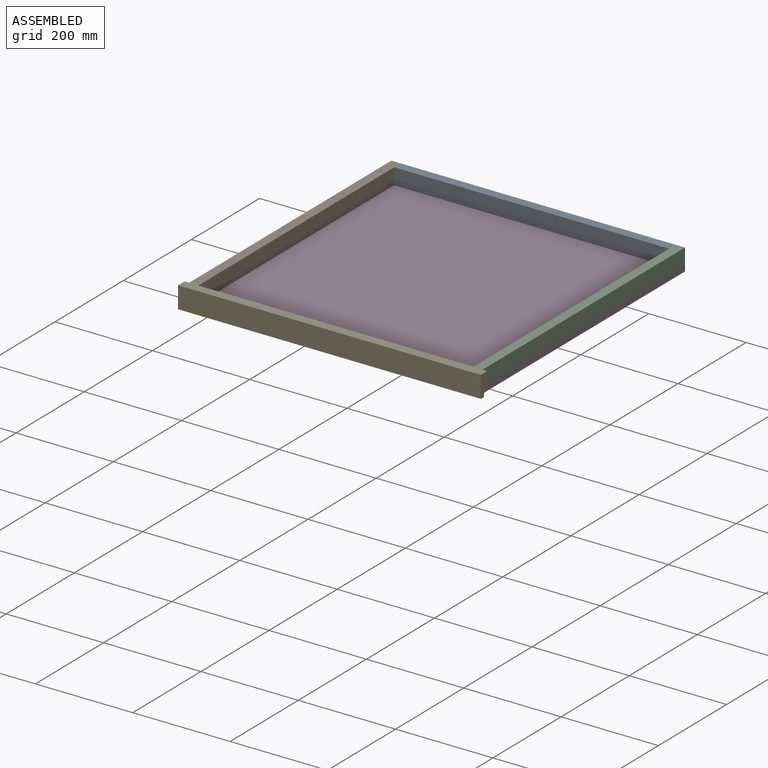
[diagram: assembled view]
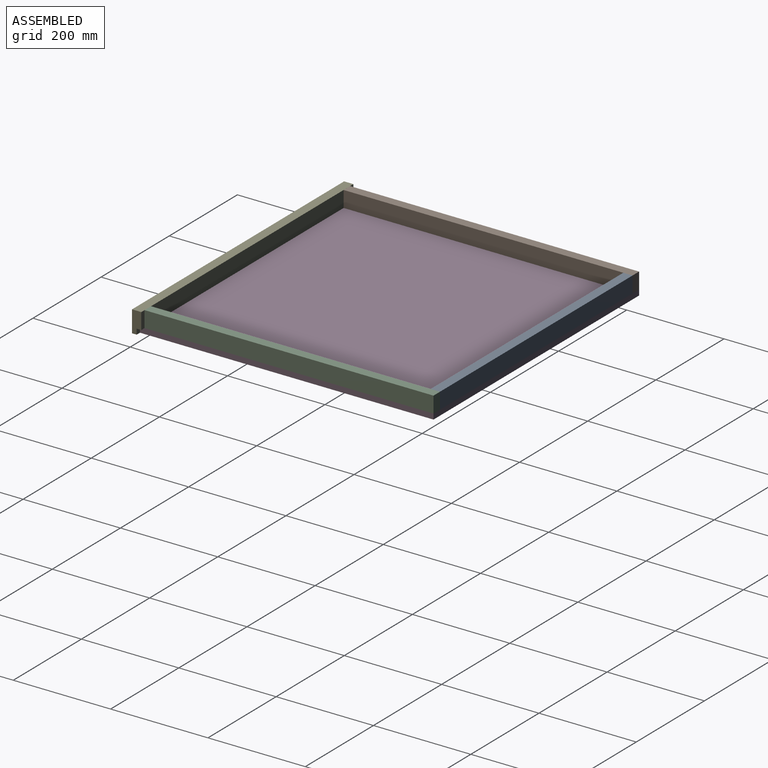
[diagram: assembled view, second angle]
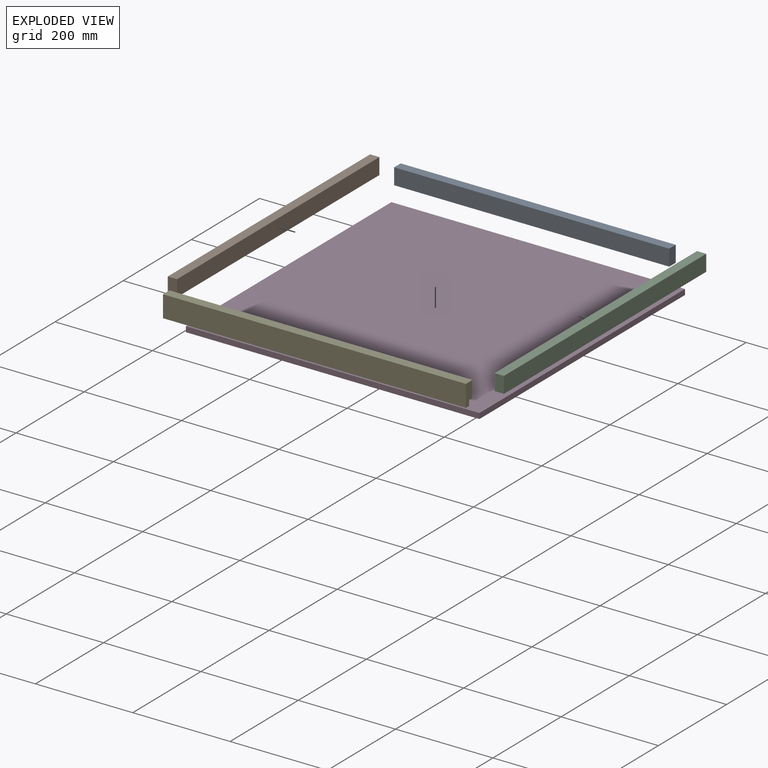
[diagram: exploded view]
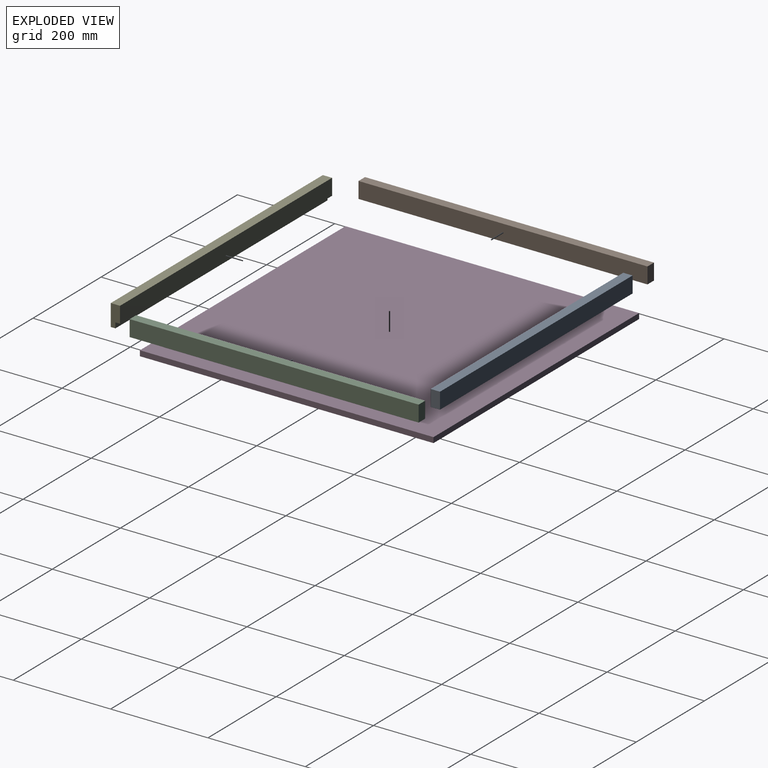
[diagram: exploded view, second angle]
ASSEMBLY  parts=5 mates=5
PART A: 6 faces, bbox 19.1x565.2x33.3 mm
  f0: plane 565.15x33.34mm, normal (-1,0,0), area 18840.7mm2, adj f1,f3,f4,f5
  f1: plane 33.34x19.05mm, normal (0,-1,0), area 635.1mm2, adj f0,f2,f4,f5
  f2: plane 565.15x33.34mm, normal (1,0,0), area 18840.7mm2, adj f1,f3,f4,f5
  f3: plane 33.34x19.05mm, normal (0,1,0), area 635.1mm2, adj f0,f2,f4,f5
  f4: plane 565.15x19.05mm, normal (0,0,1), area 10766.1mm2, adj f0,f1,f2,f3
  f5: plane 565.15x19.05mm, normal (0,0,-1), area 10766.1mm2, adj f0,f1,f2,f3
PART B: 6 faces, bbox 593.7x19.1x33.3 mm
  f0: plane 593.73x33.34mm, normal (0,1,0), area 19793.3mm2, adj f1,f3,f4,f5
  f1: plane 33.34x19.05mm, normal (-1,0,0), area 635.1mm2, adj f0,f2,f4,f5
  f2: plane 593.73x33.34mm, normal (0,-1,0), area 19793.3mm2, adj f1,f3,f4,f5
  f3: plane 33.34x19.05mm, normal (1,0,0), area 635.1mm2, adj f0,f2,f4,f5
  f4: plane 593.73x19.05mm, normal (0,0,1), area 11310.5mm2, adj f0,f1,f2,f3
  f5: plane 593.73x19.05mm, normal (0,0,-1), area 11310.5mm2, adj f0,f1,f2,f3
PART C: same geometry as B
PART D: 6 faces, bbox 603.3x603.3x11.1 mm
  f0: plane 603.25x11.11mm, normal (0,1,0), area 6703.6mm2, adj f1,f3,f4,f5
  f1: plane 603.25x11.11mm, normal (-1,0,0), area 6703.6mm2, adj f0,f2,f4,f5
  f2: plane 603.25x11.11mm, normal (0,-1,0), area 6703.6mm2, adj f1,f3,f4,f5
  f3: plane 603.25x11.11mm, normal (1,0,0), area 6703.6mm2, adj f0,f2,f4,f5
  f4: plane 603.25x603.25mm, normal (0,0,1), area 363910.6mm2, adj f0,f1,f2,f3
  f5: plane 603.25x603.25mm, normal (0,0,-1), area 363910.6mm2, adj f0,f1,f2,f3
PART E: 8 faces, bbox 622.3x19.1x44.5 mm
  f0: plane 622.3x33.34mm, normal (0,1,0), area 20745.9mm2, adj f1,f2,f4,f6
  f1: plane 44.45x19.05mm, normal (1,0,0), area 740.9mm2, adj f0,f3,f4,f5,f6,f7
  f2: plane 44.45x19.05mm, normal (-1,0,0), area 740.9mm2, adj f0,f3,f4,f5,f6,f7
  f3: plane 622.3x44.45mm, normal (0,-1,0), area 27661.2mm2, adj f1,f2,f4,f5
  f4: plane 622.3x19.05mm, normal (0,0,1), area 11854.8mm2, adj f0,f1,f2,f3
  f5: plane 622.3x9.53mm, normal (0,0,-1), area 5927.4mm2, adj f1,f2,f3,f7
  f6: plane 622.3x9.53mm, normal (0,0,-1), area 5927.4mm2, adj f0,f1,f2,f7
  f7: plane 622.3x11.11mm, normal (0,1,0), area 6915.3mm2, adj f1,f2,f5,f6
PLACE A rot(axis=(0,0,1),90deg) t=(68.03,81.6,-100.18)mm
PLACE B rot(axis=(0,0,-1),90deg) t=(-328.36,-467.16,-100.18)mm
PLACE C rot(axis=(0,0,1),90deg) t=(211.19,20.45,-100.18)mm
PLACE D t=(122.66,-395.8,-111.3)mm
PLACE E t=(119.9,-477.75,-111.3)mm
MATE planar E.f0 <-> C.f1  axis (0,1,0) through (252.56,-520.22,-83.51)mm
MATE fastened D.f2 <-> E.f7  axis (0,-1,0) through (-58.59,-529.74,-105.74)mm
MATE fastened D.f4 <-> B.f5  axis (0,0,1) through (-360.21,73.51,-100.18)mm
MATE fastened B.f0 <-> A.f3  axis (1,0,0) through (-341.16,73.51,-66.85)mm
MATE fastened A.f1 <-> C.f0  axis (1,0,0) through (223.99,73.51,-66.85)mm
